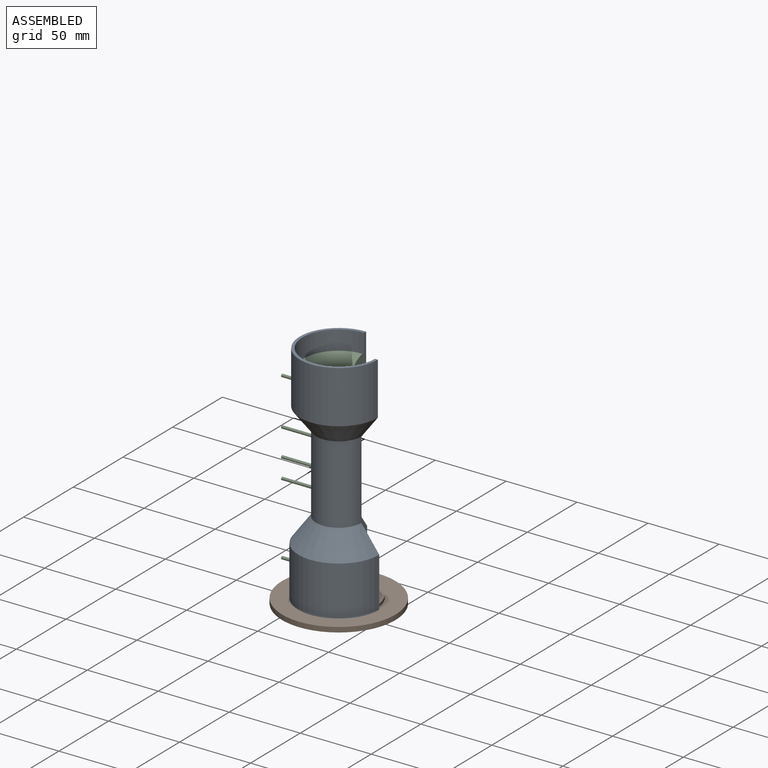
[diagram: assembled view]
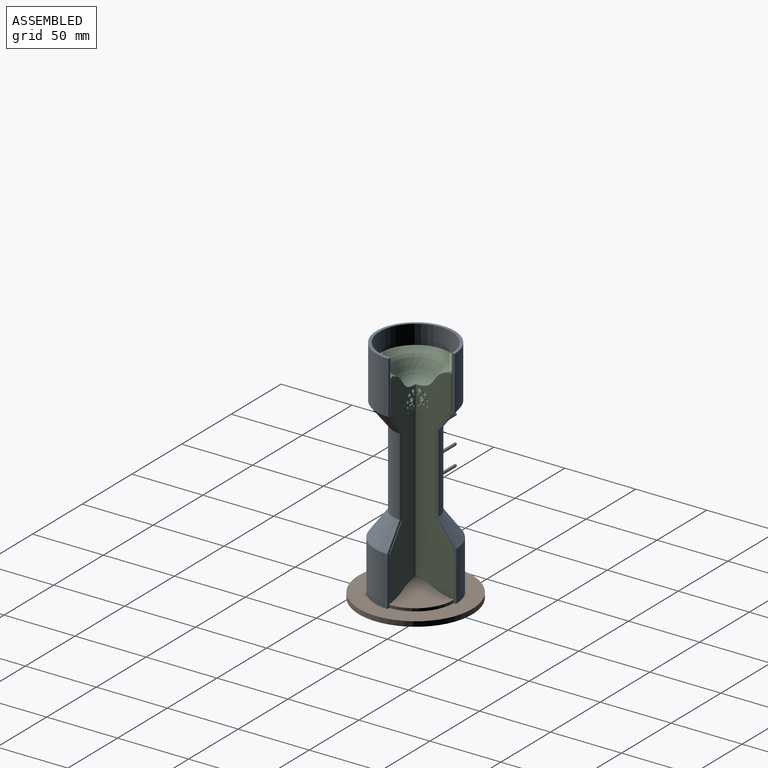
[diagram: assembled view, second angle]
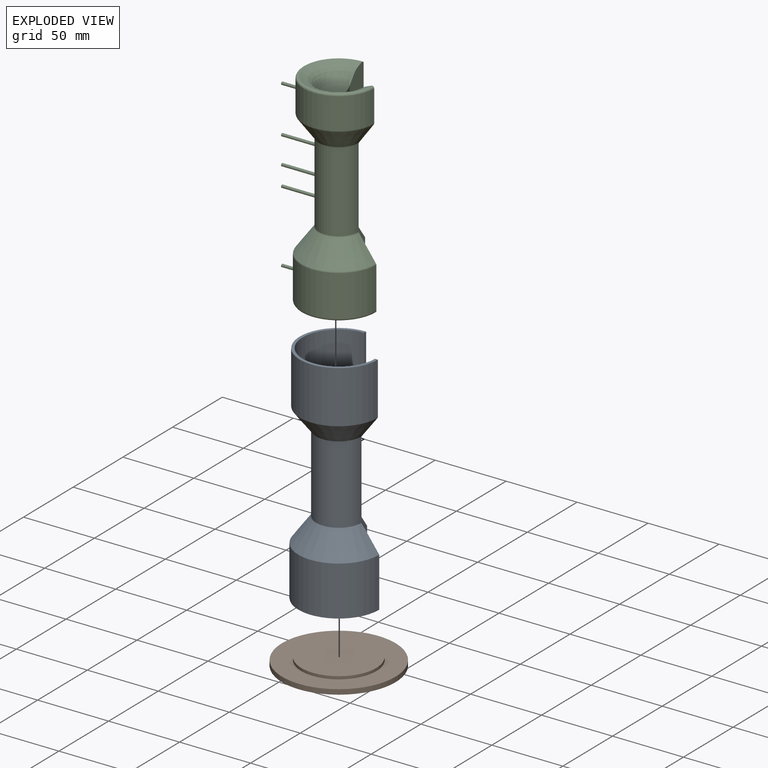
[diagram: exploded view]
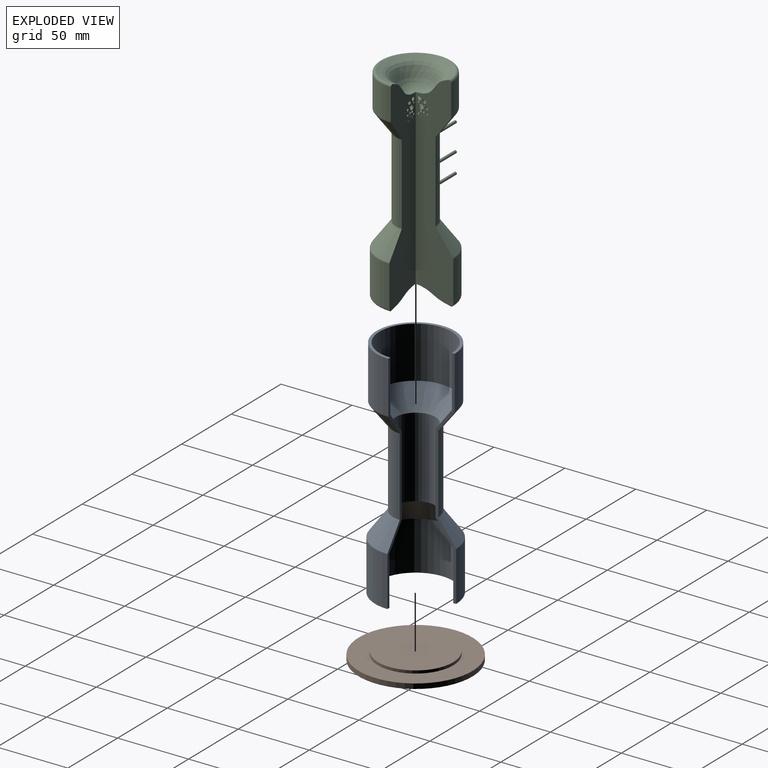
[diagram: exploded view, second angle]
ASSEMBLY  parts=3 mates=3
PART A: 14 faces, bbox 57x57x159 mm
  f0: plane 57x57mm, normal (0,0,-1), area 259.2mm2, adj f3,f7,f8,f10
  f1: plane 55x55mm, normal (0,0,1), area 249.8mm2, adj f2,f7,f8,f9
  f2: cylinder r=27.5mm len=55mm, axis (0,0,-1), area 4794.9mm2, adj f1,f6,f7,f8
  f3: cylinder r=28.5mm len=57mm, axis (0,0,-1), area 4700.6mm2, adj f0,f4,f7,f8
  f4: cone r=28.5mm half-angle=36.3deg, axis (0,0,-1), area 2212.4mm2, adj f3,f5,f7,f8
  f5: cylinder r=16mm len=55mm, axis (0,0,-1), area 4146.9mm2, adj f4,f6,f7,f8
  f6: cone r=16mm half-angle=37.5deg, axis (0,0,1), area 1937.3mm2, adj f2,f5,f7,f8
  f7: plane 159x14.5mm, normal (0,1,0), area 334mm2, adj f0,f1,f2,f3,f4,f5,f6,f9
  f8: plane 159x14.5mm, normal (1,0,0), area 334mm2, adj f0,f1,f2,f3,f4,f5,f6,f9
  f9: cylinder r=25.5mm len=51mm, axis (0,0,-1), area 4364.6mm2, adj f1,f7,f8,f13
  f10: cylinder r=26.5mm len=53mm, axis (0,0,-1), area 4288.8mm2, adj f0,f7,f8,f11
  f11: cone r=26.89mm half-angle=36.3deg, axis (0,0,-1), area 2013.6mm2, adj f7,f8,f10,f12
  f12: cylinder r=14mm len=56.33mm, axis (0,0,-1), area 3716.6mm2, adj f7,f8,f11,f13
  f13: cone r=14.41mm half-angle=37.5deg, axis (0,0,1), area 1759.1mm2, adj f7,f8,f9,f12
PART B: 5 faces, bbox 80x80x5.5 mm
  f0: cylinder r=40mm len=80mm, axis (0,0,-1), area 879.6mm2, adj f1,f2
  f1: plane 80x80mm, normal (0,0,1), area 2820.4mm2, adj f0,f3
  f2: plane 80x80mm, normal (0,0,-1), area 5026.5mm2, adj f0
  f3: cylinder r=26.5mm len=53mm, axis (0,0,-1), area 333mm2, adj f1,f4
  f4: plane 53x53mm, normal (0,0,1), area 2206.2mm2, adj f3
PART C: 59 faces, bbox 68.7x57.4x144 mm
  f0: cone r=14.29mm half-angle=36.3deg, axis (0,0,1), area 1619mm2, adj f1,f12,f13,f14
  f1: torus R=15.5mm, axis (0,0,1), area 63.1mm2, adj f0,f2,f13,f14
  f2: cylinder r=14mm len=56.02mm, axis (0,0,1), area 3686.2mm2, adj f1,f3,f13,f14,f51,f53,f55
  f3: torus R=15.5mm, axis (0,0,1), area 63.2mm2, adj f2,f4,f13,f14
  f4: cone r=26.21mm half-angle=36.3deg, axis (0,0,-1), area 1919.7mm2, adj f3,f5,f13,f14
  f5: torus R=25mm, axis (0,0,1), area 118.3mm2, adj f4,f6,f13,f14
  f6: cylinder r=26.5mm len=53mm, axis (0,0,1), area 3619.3mm2, adj f5,f7,f13,f14,f49
  f7: torus R=25mm, axis (0,0,1), area 288.2mm2, adj f6,f8,f13,f14
  f8: revolved ~49.97x49.97mm, area 1558.8mm2, adj f7,f13,f14
  f9: revolved ~45.77x45.77mm, area 1570.2mm2, adj f10,f13,f14
  f10: torus R=23.5mm, axis (0,0,1), area 339.3mm2, adj f9,f11,f13,f14
  f11: cylinder r=25mm len=50mm, axis (0,0,1), area 2580.9mm2, adj f10,f12,f13,f14,f57
  f12: torus R=23.5mm, axis (0,0,1), area 111.4mm2, adj f0,f11,f13,f14
  f13: plane 144.04x26.51mm, normal (-1,0,0), area 2524.3mm2, adj f0,f1,f2,f3,f4,f5,f6,f7
  f14: plane 144.03x26.5mm, normal (0,-1,0), area 2524.3mm2, adj f0,f1,f2,f3,f4,f5,f6,f7
  f15: torus R=2.5mm, axis (0,0,-1), area 94.3mm2, adj f13,f14
  f16: torus R=7.6mm, axis (0,0,-1), area 34.6mm2, adj f13,f14
  f17: torus R=1.3mm, axis (0,0,-1), area 6.6mm2, adj f13,f14
  f18: torus R=3.33mm, axis (0,0,-1), area 39mm2, adj f13,f14
  f19: torus R=4.14mm, axis (0,0,-1), area 33.8mm2, adj f13,f14
  f20: torus R=4.81mm, axis (0,0,-1), area 40.5mm2, adj f13,f14
  f21: torus R=5.96mm, axis (0,0,-1), area 61.6mm2, adj f13,f14
  f22: torus R=8.75mm, axis (0,0,-1), area 50mm2, adj f13,f14
  f23: torus R=10.78mm, axis (0,0,-1), area 80.7mm2, adj f13,f14
  f24: torus R=7.89mm, axis (0,0,-1), area 57.7mm2, adj f13,f14
  f25: torus R=7.94mm, axis (0,0,-1), area 173.6mm2, adj f13,f14
  f26: torus R=7.94mm, axis (0,0,-1), area 208.8mm2, adj f13,f14
  f27: torus R=3.9mm, axis (0,0,-1), area 188.5mm2, adj f13,f14
  f28: torus R=6.07mm, axis (0,0,-1), area 225.5mm2, adj f13,f14
  f29: torus R=1.86mm, axis (0,0,-1), area 35.8mm2, adj f13,f14
  f30: torus R=1.86mm, axis (0,0,-1), area 37.8mm2, adj f13,f14
  f31: torus R=3.39mm, axis (0,0,-1), area 90.5mm2, adj f13,f14
  f32: torus R=5.43mm, axis (0,0,-1), area 137.5mm2, adj f13,f14
  f33: torus R=8.08mm, axis (0,0,-1), area 30.9mm2, adj f13,f14
  f34: torus R=10.03mm, axis (0,0,-1), area 81.9mm2, adj f13,f14
  f35: torus R=9.71mm, axis (0,0,-1), area 86.1mm2, adj f13,f14
  f36: torus R=10.68mm, axis (0,0,-1), area 54.2mm2, adj f13,f14
  f37: torus R=9.39mm, axis (0,0,-1), area 43.4mm2, adj f13,f14
  f38: torus R=7.49mm, axis (0,0,-1), area 69.5mm2, adj f13,f14
  f39: torus R=4.73mm, axis (0,0,-1), area 22.8mm2, adj f13,f14
  f40: torus R=6.6mm, axis (0,0,-1), area 51.6mm2, adj f13,f14
  f41: torus R=6.39mm, axis (0,0,-1), area 35.8mm2, adj f13,f14
  f42: torus R=6.44mm, axis (0,0,-1), area 36.1mm2, adj f13,f14
  f43: torus R=6.55mm, axis (0,0,-1), area 41.9mm2, adj f13,f14
  f44: torus R=6.15mm, axis (0,0,-1), area 62.1mm2, adj f13,f14
  f45: torus R=2.61mm, axis (0,0,-1), area 20.5mm2, adj f13,f14
  f46: torus R=4.27mm, axis (0,0,-1), area 25.8mm2, adj f13,f14
  f47: torus R=6.25mm, axis (0,0,-1), area 28.1mm2, adj f13,f14
  f48: torus R=8.26mm, axis (0,0,-1), area 51.2mm2, adj f13,f14
  f49: cylinder r=1mm len=13.52mm, axis (1,0,0), area 84.9mm2, adj f6,f50
  f50: plane 2x2mm, normal (1,0,0), area 3.1mm2, adj f49
  f51: cylinder r=1mm len=26.04mm, axis (1,0,0), area 163.5mm2, adj f2,f52
  f52: plane 2x2mm, normal (1,0,0), area 3.1mm2, adj f51
  f53: cylinder r=1mm len=26.04mm, axis (1,0,0), area 163.5mm2, adj f2,f54
  f54: plane 2x2mm, normal (1,0,0), area 3.1mm2, adj f53
  f55: cylinder r=1mm len=26.04mm, axis (1,0,0), area 163.5mm2, adj f2,f56
  f56: plane 2x2mm, normal (1,0,0), area 3.1mm2, adj f55
  f57: cylinder r=1mm len=15.02mm, axis (1,0,0), area 94.3mm2, adj f11,f58
  f58: plane 2x2mm, normal (1,0,0), area 3.1mm2, adj f57
PLACE A t=(-81.09,33.24,5.96)mm fixed
PLACE B rot(axis=(0,0,-1),3.7deg) t=(-81.09,33.24,2.45)mm
PLACE C rot(axis=(0,0,1),180deg) t=(-81.09,33.24,8.3)mm
MATE parallel C.f13 <-> A.f8  axis (1,0,0) through (-81.09,47.24,84.8)mm
MATE cylindrical C.f0 <-> A.f2  axis (0,0,1) through (-81.09,33.24,84.8)mm
MATE cylindrical B.f0 <-> A.f2  axis (0,0,1) through (-81.09,33.24,7.95)mm
